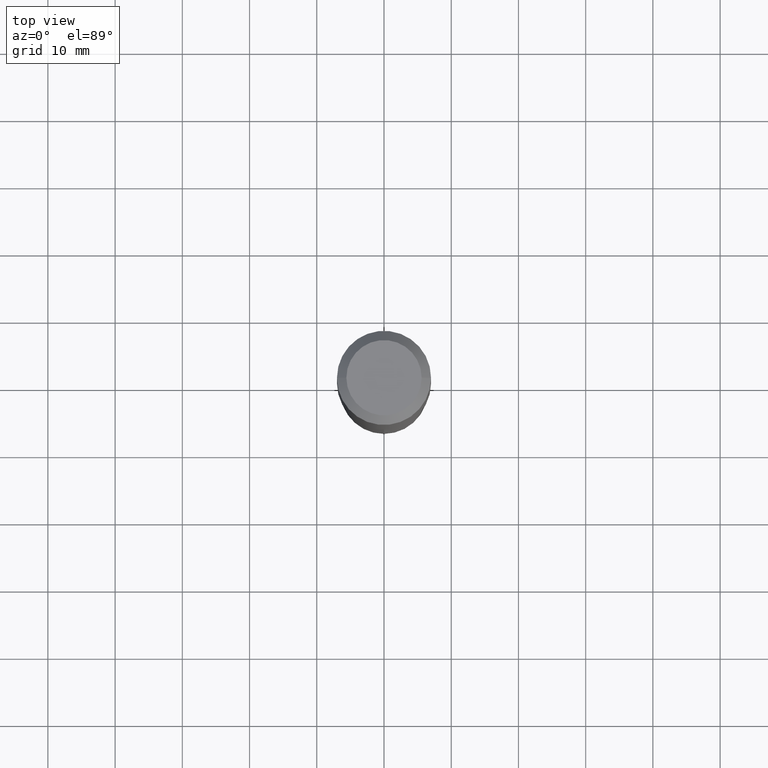
[diagram: clean part render]
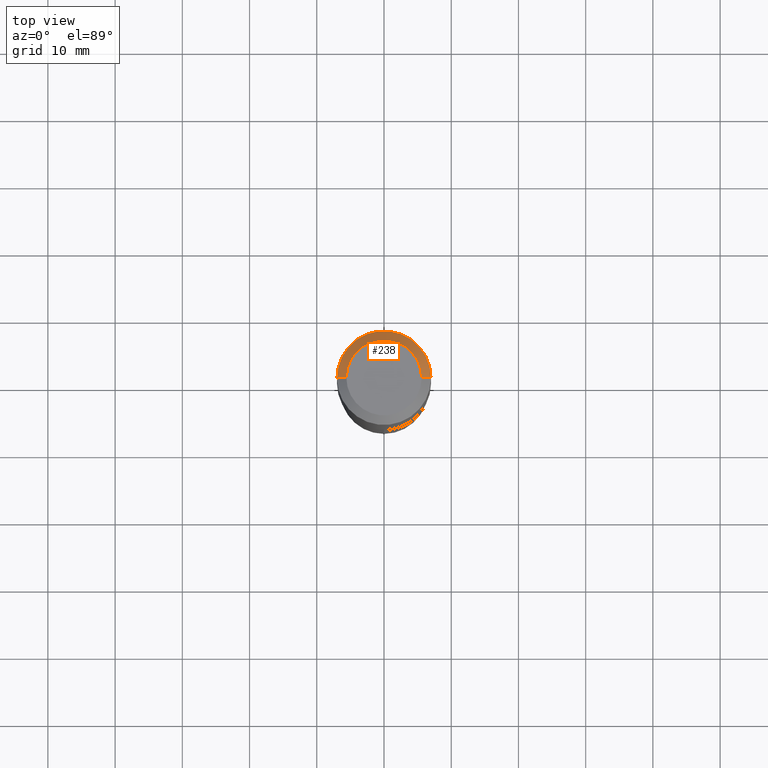
[diagram: same view with one face highlighted and labeled with its STEP entity id]
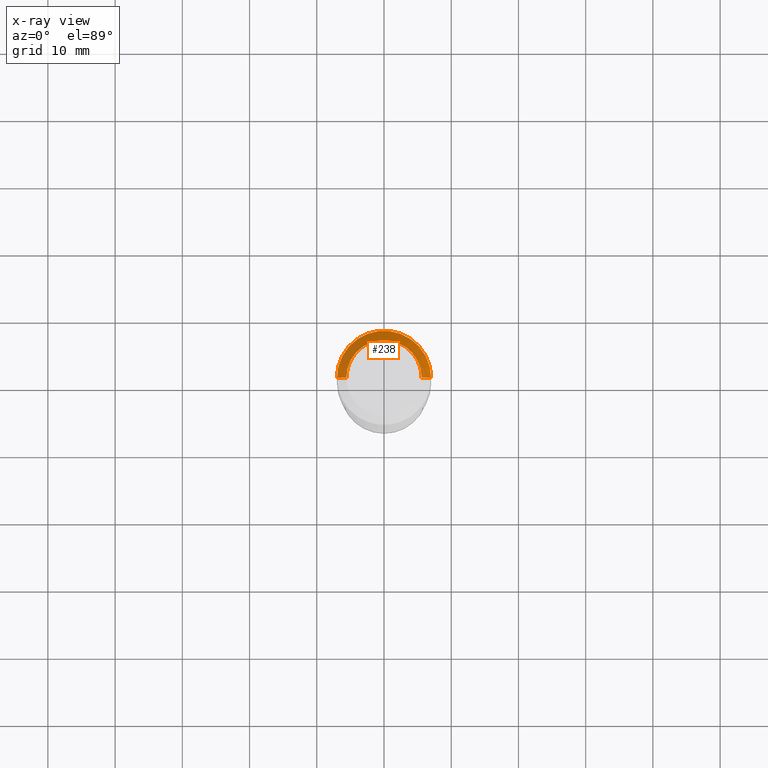
[diagram: x-ray of the same camera — body ghosted, the highlighted face saturated]
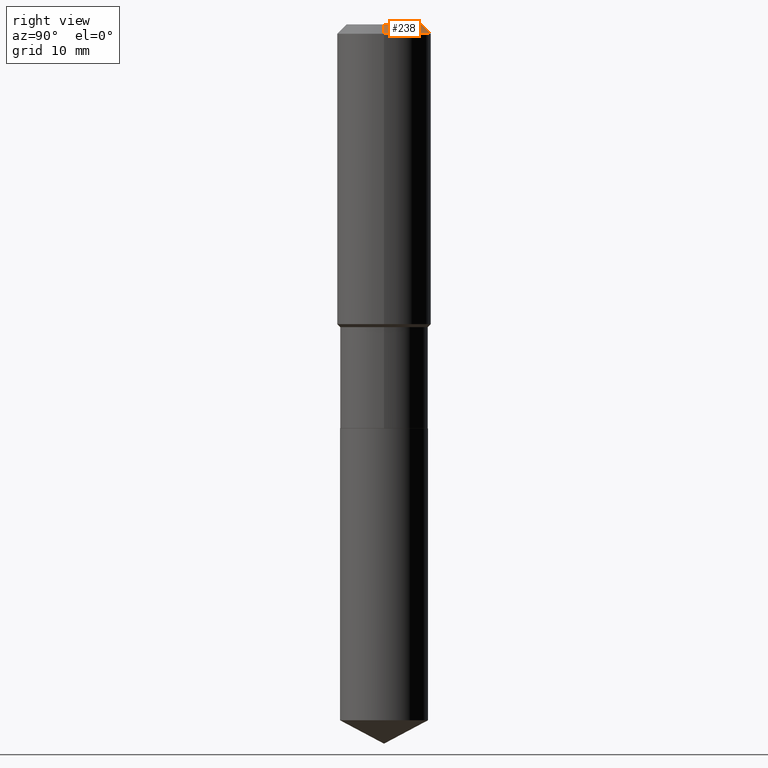
[diagram: same view with one face highlighted and labeled with its STEP entity id]
A machine part, top view. The second image highlights one B-rep face of the part: STEP entity #238.
The next image is the same camera in x-ray: the body ghosted, the highlighted face saturated — about 0% of this face is hidden behind the body in this view.
A second angle (right view) of the same face is appended — the face is thin or edge-on in the first view.
In plain terms, the highlighted conical surface has half-angle 45 deg.
Its self-contained STEP definition (entity closure, byte-faithful):
#29 = AXIS2_PLACEMENT_3D ( 'NONE', #432, #204, #394 ) ;
#48 = CONICAL_SURFACE ( 'NONE', #29, 0.2756000000000000116, 0.7853981633974452814 ) ;
#50 = DIRECTION ( 'NONE',  ( 1.000000000000000000, -6.982962677686266711E-15, 4.876132675269083677E-29 ) ) ;
#72 = VERTEX_POINT ( 'NONE', #76 ) ;
#76 = CARTESIAN_POINT ( 'NONE',  ( -0.2756000000000000116, -1.202268042979367764E-15, -0.05512000000000035621 ) ) ;
#79 = CARTESIAN_POINT ( 'NONE',  ( 0.2756000000000000116, -2.116954965367370658E-15, -0.05512000000000035621 ) ) ;
#81 = VERTEX_POINT ( 'NONE', #79 ) ;
#89 = DIRECTION ( 'NONE',  ( -2.445468806185136597E-29, 3.491481338843145583E-15, 1.000000000000000000 ) ) ;
#103 = ORIENTED_EDGE ( 'NONE', *, *, #348, .T. ) ;
#105 = EDGE_CURVE ( 'NONE', #371, #72, #419, .T. ) ;
#107 = CARTESIAN_POINT ( 'NONE',  ( 0.2756000000000000116, -2.083203699582869812E-15, -0.05512000000000035621 ) ) ;
#112 = EDGE_LOOP ( 'NONE', ( #244, #103, #140, #378 ) ) ;
#140 = ORIENTED_EDGE ( 'NONE', *, *, #487, .T. ) ;
#150 = AXIS2_PLACEMENT_3D ( 'NONE', #235, #242, #50 ) ;
#153 = AXIS2_PLACEMENT_3D ( 'NONE', #425, #89, #237 ) ;
#186 = EDGE_CURVE ( 'NONE', #480, #371, #400, .T. ) ;
#204 = DIRECTION ( 'NONE',  ( 2.445468806185136597E-29, -3.491481338843145583E-15, -1.000000000000000000 ) ) ;
#233 = CARTESIAN_POINT ( 'NONE',  ( 0.2204800000000000093, -1.797903149065768707E-15, 3.860086710924123164E-18 ) ) ;
#235 = CARTESIAN_POINT ( 'NONE',  ( -9.439721640706190018E-47, 1.347742071746724849E-32, 3.860086710912454339E-18 ) ) ;
#237 = DIRECTION ( 'NONE',  ( 1.000000000000000000, -6.982962677686265922E-15, 0.000000000000000000 ) ) ;
#238 = ADVANCED_FACE ( 'NONE', ( #287 ), #48, .T. ) ;
#242 = DIRECTION ( 'NONE',  ( -2.445468806185136597E-29, 3.491481338843145583E-15, 1.000000000000000000 ) ) ;
#244 = ORIENTED_EDGE ( 'NONE', *, *, #186, .F. ) ;
#247 = VECTOR ( 'NONE', #258, 39.37007874015748143 ) ;
#258 = DIRECTION ( 'NONE',  ( 0.7071067811865453523, -7.319954787623248157E-15, -0.7071067811865496822 ) ) ;
#287 = FACE_OUTER_BOUND ( 'NONE', #112, .T. ) ;
#293 = LINE ( 'NONE', #107, #247 ) ;
#334 = CARTESIAN_POINT ( 'NONE',  ( -0.2204800000000000093, 1.635828836874783961E-15, 3.860086710901350968E-18 ) ) ;
#336 = DIRECTION ( 'NONE',  ( -0.7071067811865453523, 2.468850131082234184E-15, -0.7071067811865496822 ) ) ;
#348 = EDGE_CURVE ( 'NONE', #480, #81, #293, .T. ) ;
#362 = CIRCLE ( 'NONE', #153, 0.2756000000000000116 ) ;
#371 = VERTEX_POINT ( 'NONE', #334 ) ;
#378 = ORIENTED_EDGE ( 'NONE', *, *, #105, .F. ) ;
#393 = VECTOR ( 'NONE', #336, 39.37007874015748143 ) ;
#394 = DIRECTION ( 'NONE',  ( -1.000000000000000000, 6.982962677686269077E-15, 0.000000000000000000 ) ) ;
#400 = CIRCLE ( 'NONE', #150, 0.2204800000000000093 ) ;
#419 = LINE ( 'NONE', #490, #393 ) ;
#425 = CARTESIAN_POINT ( 'NONE',  ( 1.347942405969256063E-30, -1.924504513970354330E-16, -0.05512000000000035621 ) ) ;
#432 = CARTESIAN_POINT ( 'NONE',  ( 1.347942405969256063E-30, -1.924504513970354330E-16, -0.05512000000000035621 ) ) ;
#480 = VERTEX_POINT ( 'NONE', #233 ) ;
#487 = EDGE_CURVE ( 'NONE', #81, #72, #362, .T. ) ;
#490 = CARTESIAN_POINT ( 'NONE',  ( -0.2756000000000000116, 1.732054062573300039E-15, -0.05512000000000035621 ) ) ;